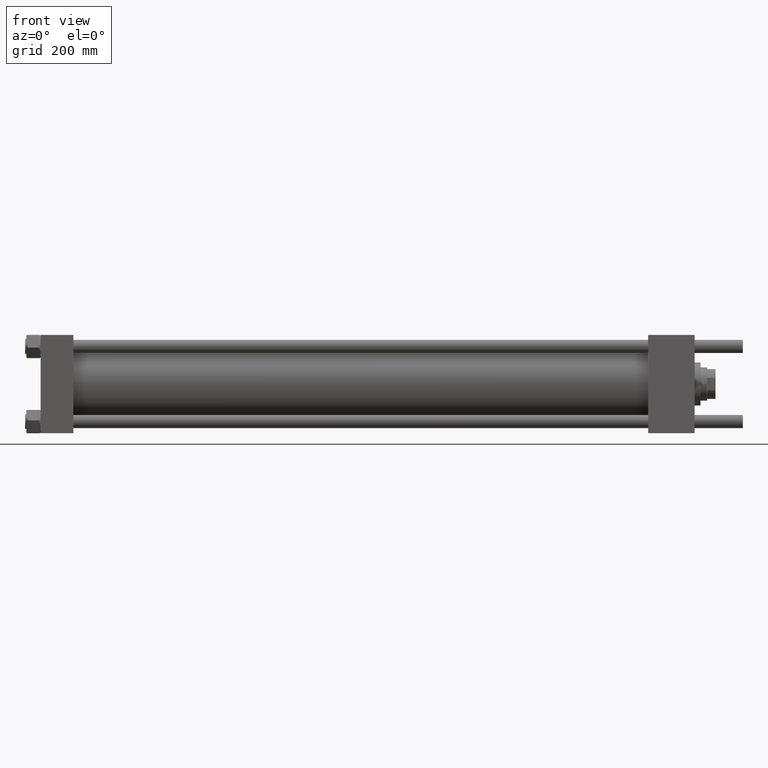
[diagram: clean part render]
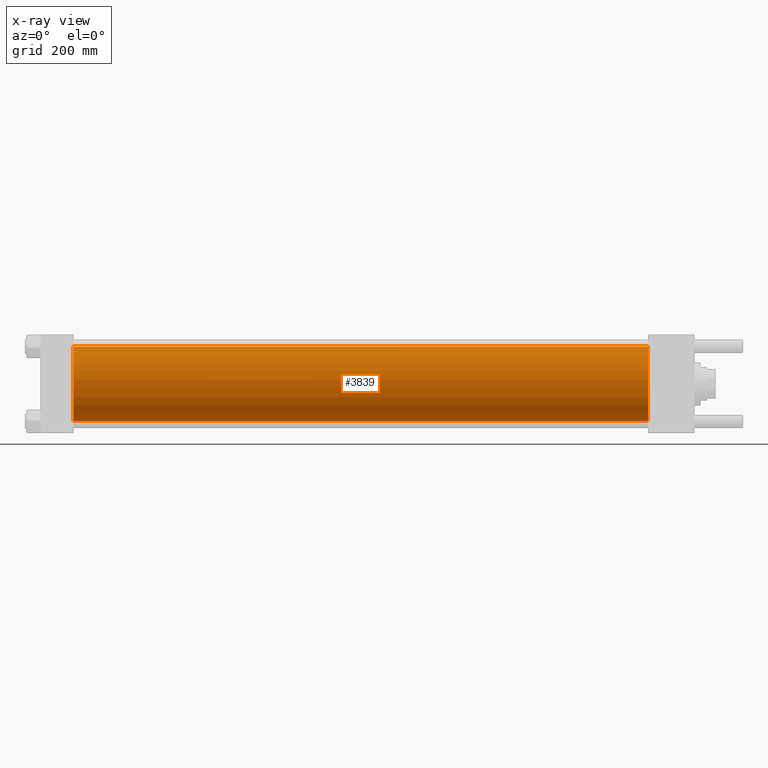
[diagram: x-ray — body ghosted, one internal face saturated and labeled with its STEP entity id]
A machine part, front view, then the same camera in x-ray: the body is ghosted and one INTERNAL B-rep face — a face not visible from any outside direction — is saturated and labeled: STEP entity #3839.
In plain terms, the highlighted cylindrical surface (partial cylindrical patch) has radius 62.5 mm, axis along (-1, -0, -0).
Its self-contained STEP definition (entity closure, byte-faithful):
#393 = DIRECTION ( 'NONE',  ( 1.000000000000000000, 0.000000000000000000, 0.000000000000000000 ) ) ;
#2223 = VECTOR ( 'NONE', #13279, 1000.000000000000000 ) ;
#3097 = EDGE_CURVE ( 'NONE', #9839, #24141, #6014, .T. ) ;
#3839 = ADVANCED_FACE ( 'NONE', ( #5861 ), #37117, .F. ) ;
#5040 = CARTESIAN_POINT ( 'NONE',  ( 1018.999999999999886, 5.051957280705747162E-15, -62.50000000000000000 ) ) ;
#5124 = AXIS2_PLACEMENT_3D ( 'NONE', #28076, #23447, #9257 ) ;
#5201 = VECTOR ( 'NONE', #6477, 1000.000000000000000 ) ;
#5783 = ORIENTED_EDGE ( 'NONE', *, *, #6186, .F. ) ;
#5861 = FACE_OUTER_BOUND ( 'NONE', #40893, .T. ) ;
#6014 = CIRCLE ( 'NONE', #5124, 62.50000000000000000 ) ;
#6186 = EDGE_CURVE ( 'NONE', #26779, #9839, #46118, .T. ) ;
#6477 = DIRECTION ( 'NONE',  ( -1.000000000000000000, -0.000000000000000000, -0.000000000000000000 ) ) ;
#9257 = DIRECTION ( 'NONE',  ( 0.000000000000000000, 0.000000000000000000, -1.000000000000000000 ) ) ;
#9443 = EDGE_CURVE ( 'NONE', #26779, #28253, #54377, .T. ) ;
#9839 = VERTEX_POINT ( 'NONE', #10425 ) ;
#10425 = CARTESIAN_POINT ( 'NONE',  ( 55.00000000000000000, -2.602085213965210642E-15, 62.50000000000000000 ) ) ;
#13279 = DIRECTION ( 'NONE',  ( -1.000000000000000000, -0.000000000000000000, -0.000000000000000000 ) ) ;
#17126 = ORIENTED_EDGE ( 'NONE', *, *, #27623, .T. ) ;
#21573 = ORIENTED_EDGE ( 'NONE', *, *, #3097, .F. ) ;
#22603 = CARTESIAN_POINT ( 'NONE',  ( 1018.999999999999886, -2.602085213965210642E-15, 62.50000000000000000 ) ) ;
#23447 = DIRECTION ( 'NONE',  ( 1.000000000000000000, 0.000000000000000000, 0.000000000000000000 ) ) ;
#23811 = DIRECTION ( 'NONE',  ( -1.000000000000000000, -0.000000000000000000, -0.000000000000000000 ) ) ;
#24141 = VERTEX_POINT ( 'NONE', #34509 ) ;
#26779 = VERTEX_POINT ( 'NONE', #22603 ) ;
#27623 = EDGE_CURVE ( 'NONE', #28253, #24141, #39631, .T. ) ;
#28076 = CARTESIAN_POINT ( 'NONE',  ( 55.00000000000000000, -2.602085213965210642E-15, 0.000000000000000000 ) ) ;
#28253 = VERTEX_POINT ( 'NONE', #5040 ) ;
#30515 = CARTESIAN_POINT ( 'NONE',  ( 1018.999999999999886, -2.602085213965210642E-15, 0.000000000000000000 ) ) ;
#34509 = CARTESIAN_POINT ( 'NONE',  ( 55.00000000000000000, 5.051957280705747162E-15, -62.50000000000000000 ) ) ;
#36336 = CARTESIAN_POINT ( 'NONE',  ( 1018.999999999999886, -2.602085213965210642E-15, 62.50000000000000000 ) ) ;
#37117 = CYLINDRICAL_SURFACE ( 'NONE', #48525, 62.50000000000000000 ) ;
#39631 = LINE ( 'NONE', #57274, #2223 ) ;
#40893 = EDGE_LOOP ( 'NONE', ( #55992, #17126, #21573, #5783 ) ) ;
#41459 = DIRECTION ( 'NONE',  ( 0.000000000000000000, 0.000000000000000000, 1.000000000000000000 ) ) ;
#45783 = CARTESIAN_POINT ( 'NONE',  ( 1018.999999999999886, -2.602085213965210642E-15, 0.000000000000000000 ) ) ;
#46118 = LINE ( 'NONE', #36336, #5201 ) ;
#48525 = AXIS2_PLACEMENT_3D ( 'NONE', #45783, #23811, #41459 ) ;
#48996 = DIRECTION ( 'NONE',  ( 0.000000000000000000, 0.000000000000000000, -1.000000000000000000 ) ) ;
#49744 = AXIS2_PLACEMENT_3D ( 'NONE', #30515, #393, #48996 ) ;
#54377 = CIRCLE ( 'NONE', #49744, 62.50000000000000000 ) ;
#55992 = ORIENTED_EDGE ( 'NONE', *, *, #9443, .T. ) ;
#57274 = CARTESIAN_POINT ( 'NONE',  ( 1018.999999999999886, 5.051957280705747162E-15, -62.50000000000000000 ) ) ;